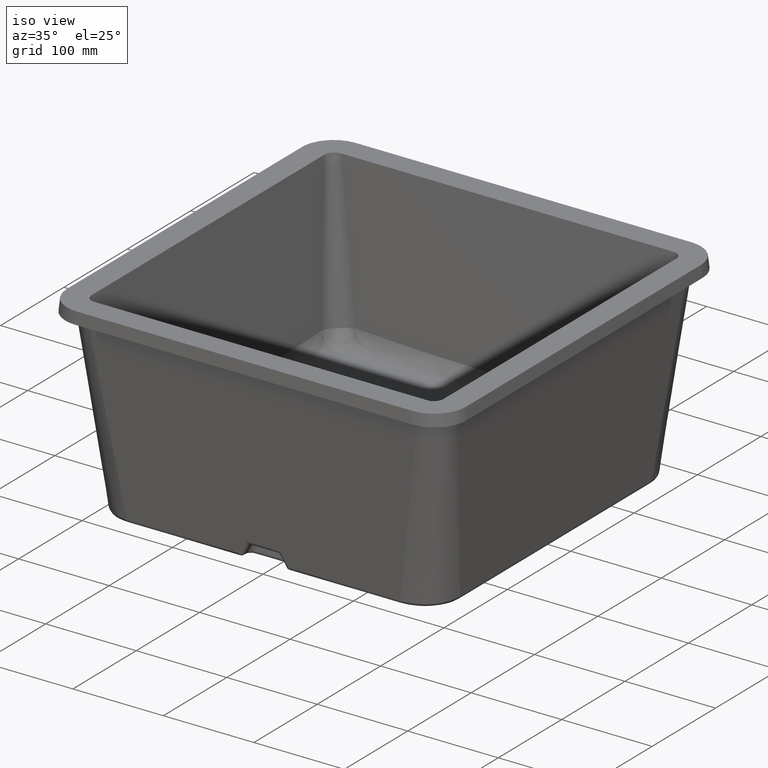
[diagram: clean part render]
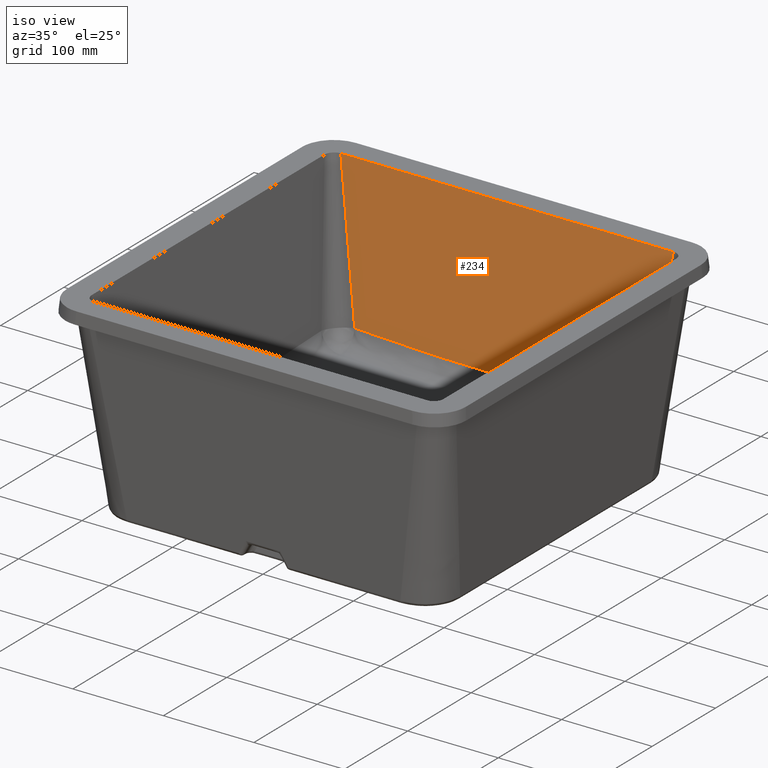
[diagram: same view with one face highlighted and labeled with its STEP entity id]
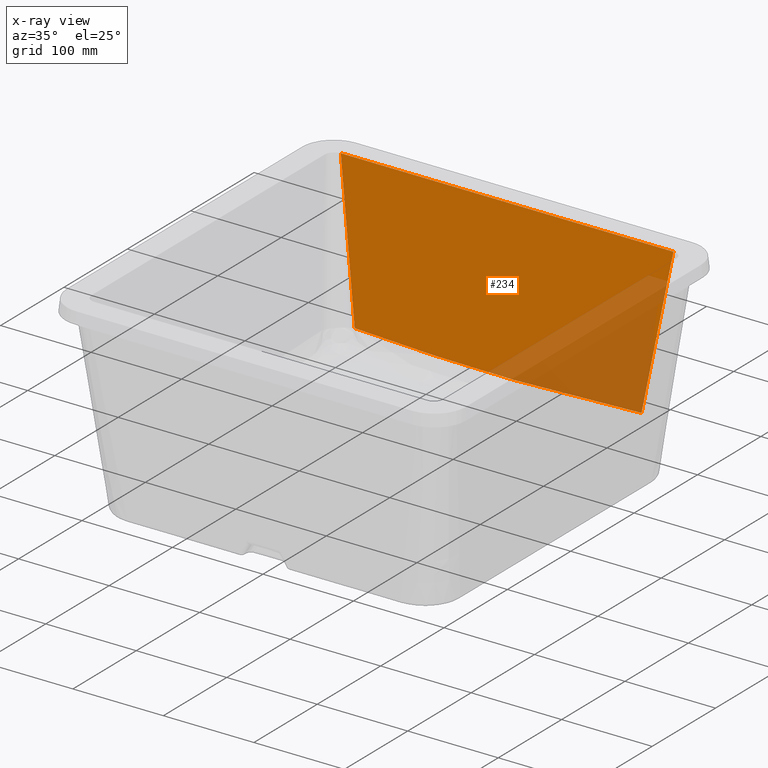
[diagram: x-ray of the same camera — body ghosted, the highlighted face saturated]
A machine part, iso view. The second image highlights one B-rep face of the part: STEP entity #234.
The next image is the same camera in x-ray: the body ghosted, the highlighted face saturated — about 22% of this face is hidden behind the body in this view.
In plain terms, the highlighted planar face has unit normal (0, 0.9962, -0.0872).
Its self-contained STEP definition (entity closure, byte-faithful):
#84=LINE('',#3667,#108);
#108=VECTOR('',#1534,1.);
#122=PLANE('',#1391);
#234=ADVANCED_FACE('',(#360),#122,.F.);
#360=FACE_OUTER_BOUND('',#448,.T.);
#448=EDGE_LOOP('',(#819,#820,#821,#822));
#819=ORIENTED_EDGE('',*,*,#1176,.T.);
#820=ORIENTED_EDGE('',*,*,#1190,.F.);
#821=ORIENTED_EDGE('',*,*,#1191,.F.);
#822=ORIENTED_EDGE('',*,*,#1188,.T.);
#1000=VERTEX_POINT('',#3666);
#1001=VERTEX_POINT('',#3668);
#1009=VERTEX_POINT('',#3782);
#1010=VERTEX_POINT('',#3827);
#1176=EDGE_CURVE('',#1001,#1000,#84,.T.);
#1188=EDGE_CURVE('',#1009,#1001,#1310,.T.);
#1190=EDGE_CURVE('',#1010,#1000,#1311,.T.);
#1191=EDGE_CURVE('',#1009,#1010,#1312,.T.);
#1310=B_SPLINE_CURVE_WITH_KNOTS('',3,(#3774,#3775,#3776,#3777,#3778,#3779,
#3780,#3781),.UNSPECIFIED.,.F.,.F.,(4,2,2,4),(0.,0.530612244897959,0.795918367346939,
1.),.UNSPECIFIED.);
#1311=B_SPLINE_CURVE_WITH_KNOTS('',3,(#3819,#3820,#3821,#3822,#3823,#3824,
#3825,#3826),.UNSPECIFIED.,.F.,.F.,(4,2,2,4),(0.,0.530612244897959,0.795918367346939,
1.),.UNSPECIFIED.);
#1312=B_SPLINE_CURVE_WITH_KNOTS('',3,(#3828,#3829,#3830,#3831,#3832,#3833),
 .UNSPECIFIED.,.F.,.F.,(4,2,4),(0.,0.5,1.),.UNSPECIFIED.);
#1391=AXIS2_PLACEMENT_3D('',#3834,#1546,#1547);
#1534=DIRECTION('',(-1.,0.,0.));
#1546=DIRECTION('',(0.,0.996194698091746,-0.0871557427476581));
#1547=DIRECTION('',(0.,-0.0871557427476581,-0.996194698091746));
#3666=CARTESIAN_POINT('',(-183.733262057552,-14.6999093082075,-1.21358363173544E-12));
#3667=CARTESIAN_POINT('',(-195.,-14.6999093082074,0.));
#3668=CARTESIAN_POINT('',(183.733262057552,-14.6999093082075,-1.08178078763362E-12));
#3774=CARTESIAN_POINT('',(96.4825473934126,-63.7039124000919,-560.11831838492));
#3775=CARTESIAN_POINT('',(116.178237909725,-52.6419092672413,-433.679044003126));
#3776=CARTESIAN_POINT('',(135.873928426038,-41.5799061343906,-307.239769621333));
#3777=CARTESIAN_POINT('',(165.417464200506,-24.9869014351146,-117.580858048643));
#3778=CARTESIAN_POINT('',(175.265309458662,-19.4558998686892,-54.3612208577469));
#3779=CARTESIAN_POINT('',(192.688420300016,-9.67028171270596,57.4889064799932));
#3780=CARTESIAN_POINT('',(200.263685883213,-5.41566512314801,106.119396626837));
#3781=CARTESIAN_POINT('',(207.83895146641,-1.16104853359006,154.74988677368));
#3782=CARTESIAN_POINT('',(158.430778897801,-28.9109443440322,-162.432873735852));
#3819=CARTESIAN_POINT('',(-96.4825473934126,-63.7039124000919,-560.118318384919));
#3820=CARTESIAN_POINT('',(-116.178237909725,-52.6419092672413,-433.679044003126));
#3821=CARTESIAN_POINT('',(-135.873928426038,-41.5799061343906,-307.239769621333));
#3822=CARTESIAN_POINT('',(-165.417464200506,-24.9869014351146,-117.580858048643));
#3823=CARTESIAN_POINT('',(-175.265309458662,-19.4558998686892,-54.3612208577469));
#3824=CARTESIAN_POINT('',(-192.688420300016,-9.67028171270596,57.4889064799931));
#3825=CARTESIAN_POINT('',(-200.263685883213,-5.41566512314801,106.119396626837));
#3826=CARTESIAN_POINT('',(-207.83895146641,-1.16104853359007,154.74988677368));
#3827=CARTESIAN_POINT('',(-158.430778897801,-28.9109443440322,-162.432873735852));
#3828=CARTESIAN_POINT('',(158.430778897801,-28.9109443440322,-162.432873735852));
#3829=CARTESIAN_POINT('',(105.652442792431,-29.1397209586843,-165.047802406974));
#3830=CARTESIAN_POINT('',(52.8637912290508,-29.3134770485098,-167.033843601602));
#3831=CARTESIAN_POINT('',(-52.7786321108062,-29.3136514465686,-167.035836980537));
#3832=CARTESIAN_POINT('',(-105.633395895316,-29.1398035206778,-165.048746094878));
#3833=CARTESIAN_POINT('',(-158.430778897801,-28.9109443440322,-162.432873735852));
#3834=CARTESIAN_POINT('',(-195.,-14.,8.));